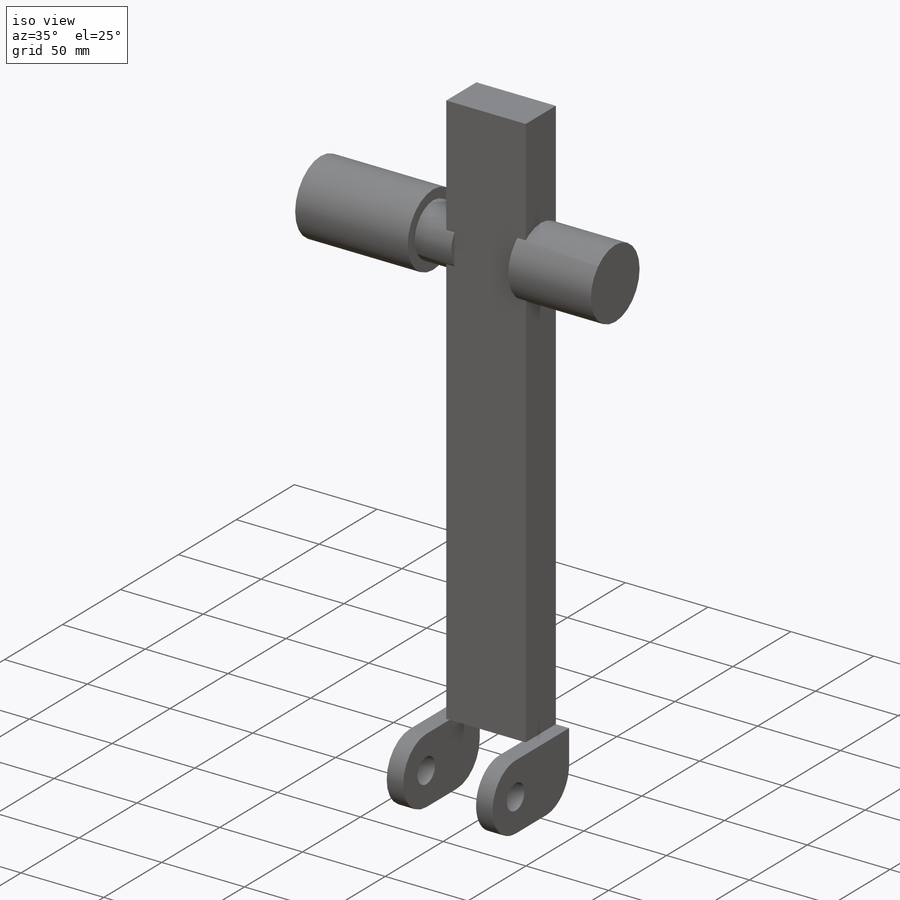
[diagram: iso view]
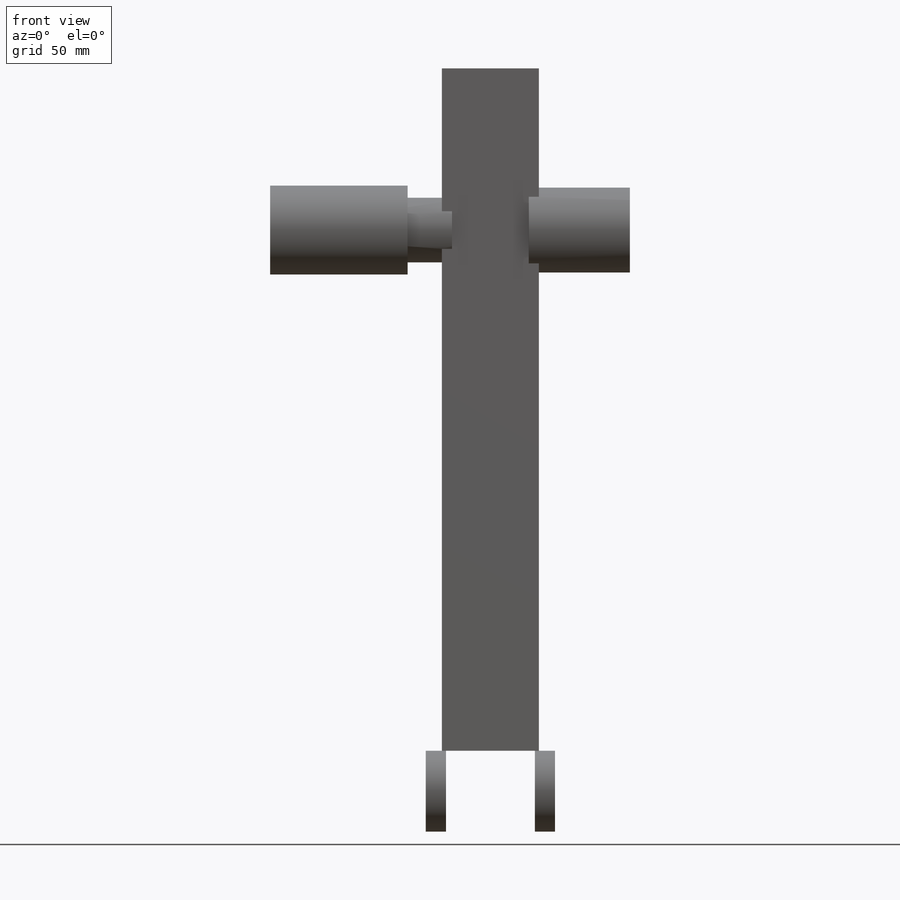
[diagram: front view]
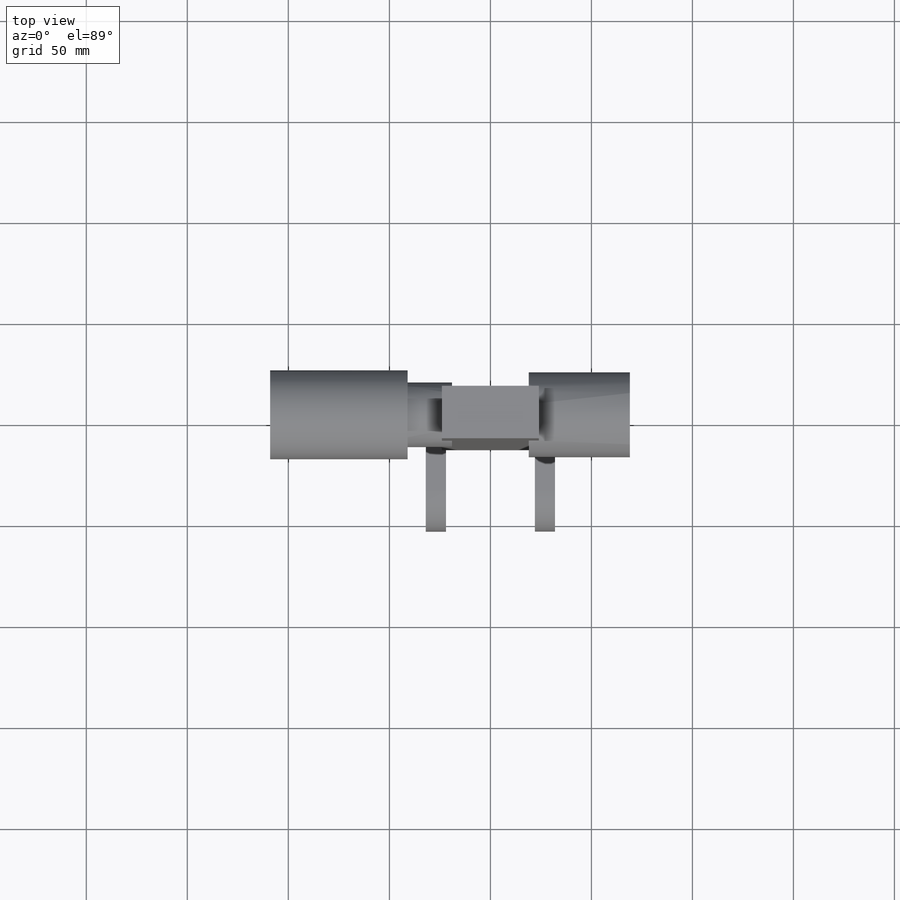
[diagram: top view]
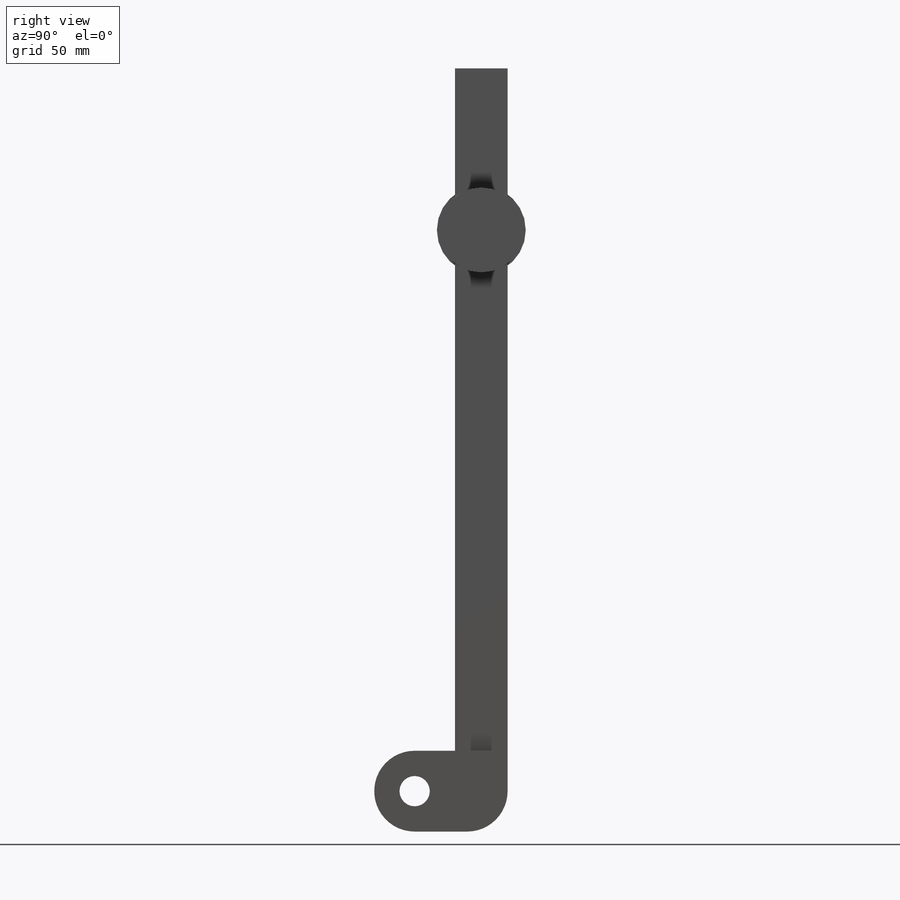
[diagram: right view]
SOLIDWORKS PART (.sldprt)
format: sldprt  version: not decoded by parser v0  size: 233,472 bytes
history: native  units: mm
features: plane x9, extrude x9, sketch x7, mirror x2, material x1, cut_extrude x1 (+11 scaffold rows collapsed)
feature tree (40):
  scaffold x11  (default folders/planes/origin — collapsed)
  material  "Material <not specified>"
  sketch  "Sketch1"  dims[c1.D1=26.0mm c1.D2=38.0mm c2.D1=48.0mm]
  plane  "Plane1"  Offset=19mm
  sketch  "Sketch2"  dims[D1=~9.908486mm]
  plane  "Plane2"  Offset=19mm
  sketch  "Sketch3"  dims[D1=21.0mm]
  extrude  "Boss-Extrude1"  Depth=22mm
  plane  "Plane3"
  sketch  "Sketch4"  dims[D1=44.0mm]
  extrude  "Boss-Extrude2"  Depth=68mm
  extrude  "Boss-Extrude3"  Depth=50mm
  extrude  "Boss-Extrude5"  Depth=80mm
  plane  "Plane4"
  sketch  "Sketch5"  dims[c1.D1=40.0mm c1.D2=20.0mm c1.D3=20.0mm c1.D4=20.0mm c2.D1=20.0mm c2.D3=25.0mm c2.D4=46.0mm]
  extrude  "Boss-Extrude7"  Depth=8mm
  plane  "Plane8"
  sketch  "Sketch10"  dims[D1=~8.556562mm]
  cut_extrude  "Cut-Extrude4"  [1 undecoded]
  mirror  "Mirror26"
  sketch  "Sketch11"
  plane  "Plane5"  Offset=19mm
  plane  "Plane9"
  plane  "Plane10"
  extrude  "Axis2"  [1 undecoded]
  extrude  "Axis3"  [1 undecoded]
  extrude  "Axis4"  [1 undecoded]
  plane  "Plane11"
  extrude  "Axis5"  [1 undecoded]
  mirror  "Coordinate System5"
decode coverage: 11 of 19 modeling features carry decoded parameters
note: ~ marks probable driven/reference dimensions
note: 5 parameter values undecoded
summary: no parameter record found for 5 features
note: suppression state not decoded; provenance and decode notes live in map.json
